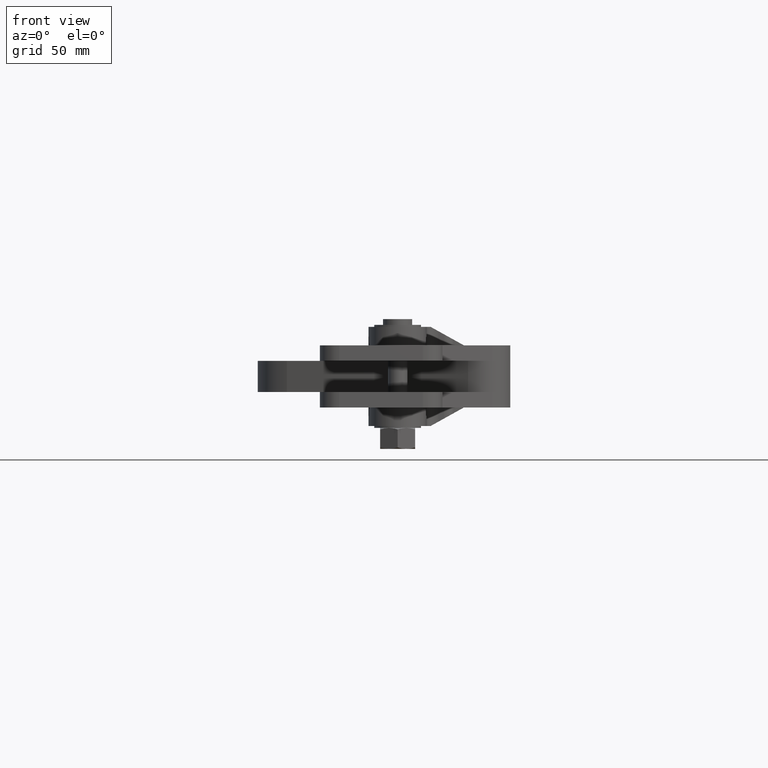
[diagram: clean part render]
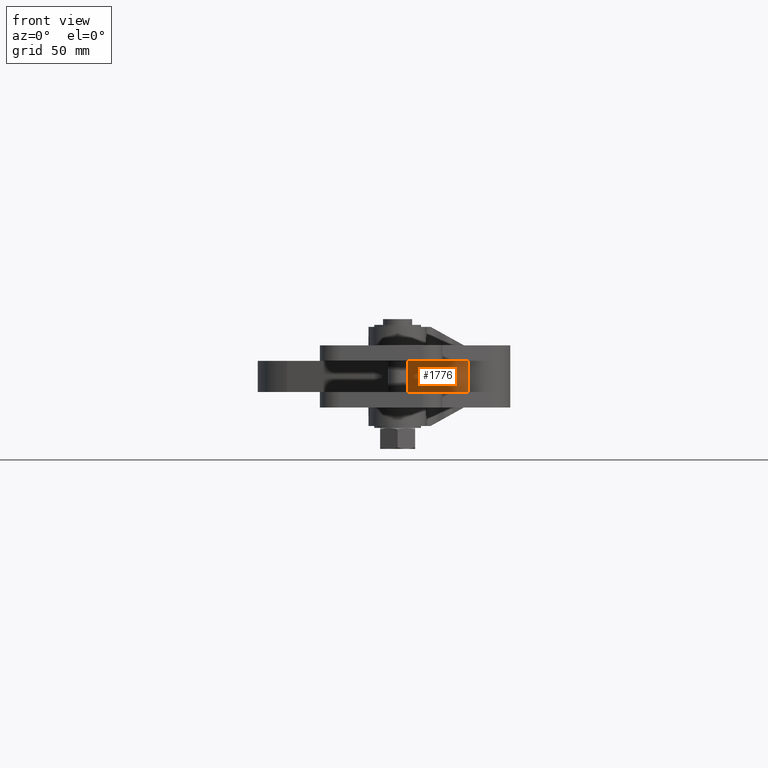
[diagram: same view with one face highlighted and labeled with its STEP entity id]
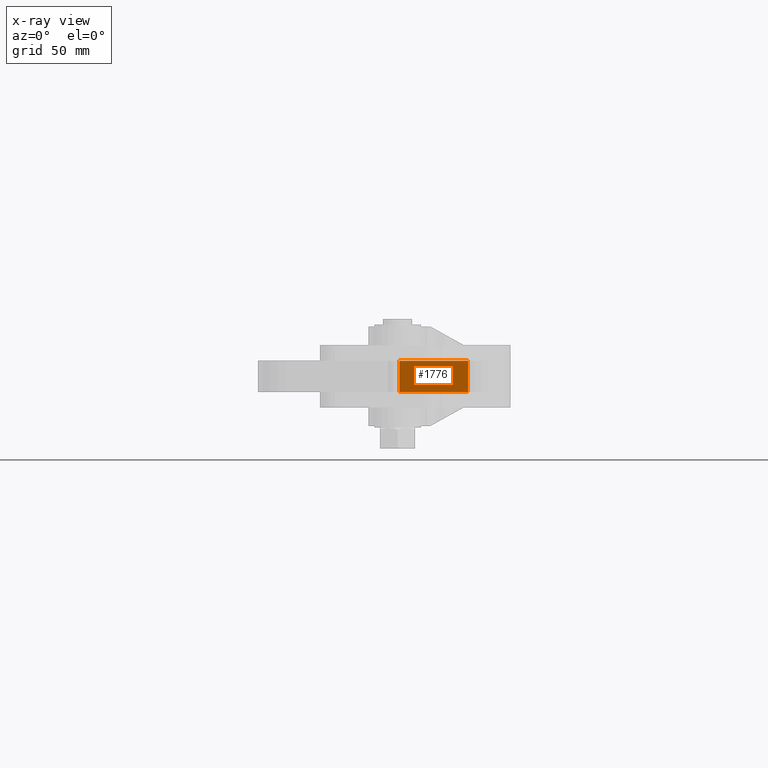
[diagram: x-ray of the same camera — body ghosted, the highlighted face saturated]
A machine part, front view. The second image highlights one B-rep face of the part: STEP entity #1776.
The next image is the same camera in x-ray: the body ghosted, the highlighted face saturated — about 0% of this face is hidden behind the body in this view.
In plain terms, the highlighted planar face has unit normal (0.4525, 0.8918, -0).
Its self-contained STEP definition (entity closure, byte-faithful):
#167 = VERTEX_POINT ( 'NONE', #3386 ) ;
#168 = DIRECTION ( 'NONE',  ( 0.8917572824899984200, -0.4525140319659194900, 5.258861740529664600E-023 ) ) ;
#302 = CARTESIAN_POINT ( 'NONE',  ( -156.9774859064244800, 79.45441238253947300, 7.407583735172758000 ) ) ;
#472 = ORIENTED_EDGE ( 'NONE', *, *, #1660, .F. ) ;
#548 = LINE ( 'NONE', #5067, #5078 ) ;
#603 = VECTOR ( 'NONE', #168, 1000.000000000000000 ) ;
#612 = AXIS2_PLACEMENT_3D ( 'NONE', #3106, #1774, #3985 ) ;
#696 = DIRECTION ( 'NONE',  ( 0.8917572824899984200, -0.4525140319659194900, 5.258861740529664600E-023 ) ) ;
#708 = EDGE_CURVE ( 'NONE', #3910, #5088, #1198, .T. ) ;
#1198 = LINE ( 'NONE', #5168, #4561 ) ;
#1361 = PLANE ( 'NONE',  #612 ) ;
#1482 = LINE ( 'NONE', #1686, #3535 ) ;
#1660 = EDGE_CURVE ( 'NONE', #3910, #167, #4369, .T. ) ;
#1681 = ORIENTED_EDGE ( 'NONE', *, *, #5362, .T. ) ;
#1686 = CARTESIAN_POINT ( 'NONE',  ( -121.7401231388972300, 61.57353670608167600, 7.407583735172758000 ) ) ;
#1745 = EDGE_CURVE ( 'NONE', #167, #3328, #1482, .T. ) ;
#1774 = DIRECTION ( 'NONE',  ( 0.4525140319659195500, 0.8917572824899984200, -1.978477871897428500E-022 ) ) ;
#1776 = ADVANCED_FACE ( 'NONE', ( #4574 ), #1361, .F. ) ;
#1832 = DIRECTION ( 'NONE',  ( -4.263261734951214900E-023, -2.002292923485684900E-022, -1.000000000000000000 ) ) ;
#3106 = CARTESIAN_POINT ( 'NONE',  ( -156.9774859064244800, 79.45441238253947300, 7.407583735172758000 ) ) ;
#3328 = VERTEX_POINT ( 'NONE', #3713 ) ;
#3386 = CARTESIAN_POINT ( 'NONE',  ( -121.7401231388972300, 61.57353670608167600, 7.407583735172758000 ) ) ;
#3465 = EDGE_LOOP ( 'NONE', ( #1681, #3927, #472, #4758 ) ) ;
#3535 = VECTOR ( 'NONE', #1832, 1000.000000000000000 ) ;
#3713 = CARTESIAN_POINT ( 'NONE',  ( -121.7401231388972300, 61.57353670608167600, -8.592416264827242900 ) ) ;
#3910 = VERTEX_POINT ( 'NONE', #5284 ) ;
#3927 = ORIENTED_EDGE ( 'NONE', *, *, #1745, .F. ) ;
#3985 = DIRECTION ( 'NONE',  ( -0.8917572824899984200, 0.4525140319659195500, -5.258861740529664600E-023 ) ) ;
#4369 = LINE ( 'NONE', #302, #603 ) ;
#4426 = CARTESIAN_POINT ( 'NONE',  ( -156.9774859064244800, 79.45441238253947300, -8.592416264827242900 ) ) ;
#4561 = VECTOR ( 'NONE', #4722, 1000.000000000000000 ) ;
#4574 = FACE_OUTER_BOUND ( 'NONE', #3465, .T. ) ;
#4722 = DIRECTION ( 'NONE',  ( -4.263261734951214900E-023, -2.002292923485684900E-022, -1.000000000000000000 ) ) ;
#4758 = ORIENTED_EDGE ( 'NONE', *, *, #708, .T. ) ;
#5067 = CARTESIAN_POINT ( 'NONE',  ( -156.9774859064244800, 79.45441238253947300, -8.592416264827242900 ) ) ;
#5078 = VECTOR ( 'NONE', #696, 1000.000000000000000 ) ;
#5088 = VERTEX_POINT ( 'NONE', #4426 ) ;
#5168 = CARTESIAN_POINT ( 'NONE',  ( -156.9774859064244800, 79.45441238253947300, 7.407583735172758000 ) ) ;
#5284 = CARTESIAN_POINT ( 'NONE',  ( -156.9774859064244800, 79.45441238253947300, 7.407583735172758000 ) ) ;
#5362 = EDGE_CURVE ( 'NONE', #5088, #3328, #548, .T. ) ;